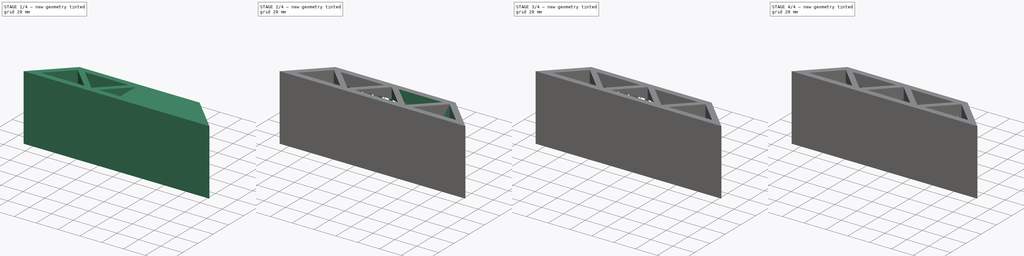
[diagram: build sequence overview — one tinted view per stage of 4, left to right]
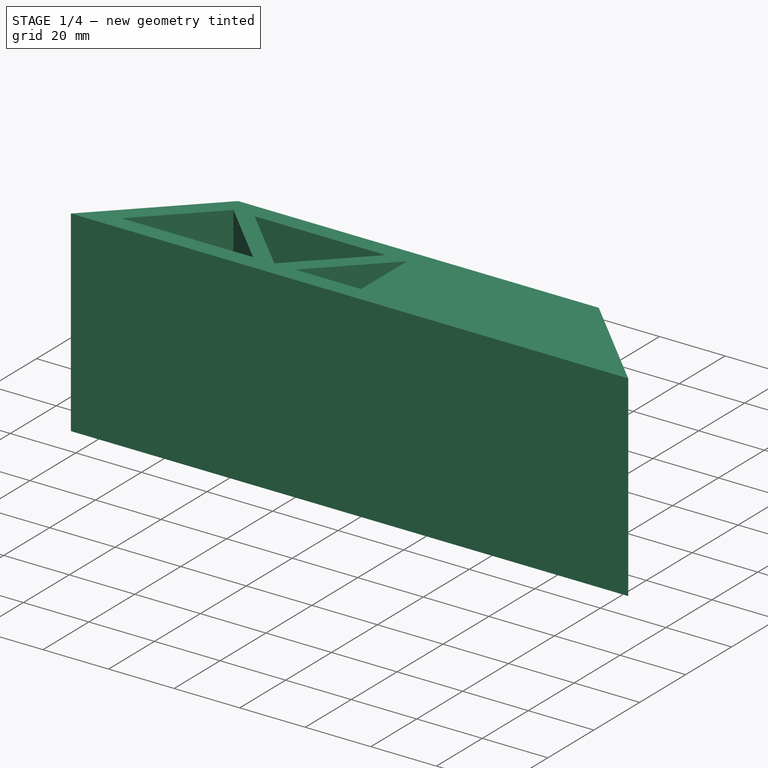
[diagram: stage 1 of 4 — iso view after this stage's code; geometry added in this stage tinted green]
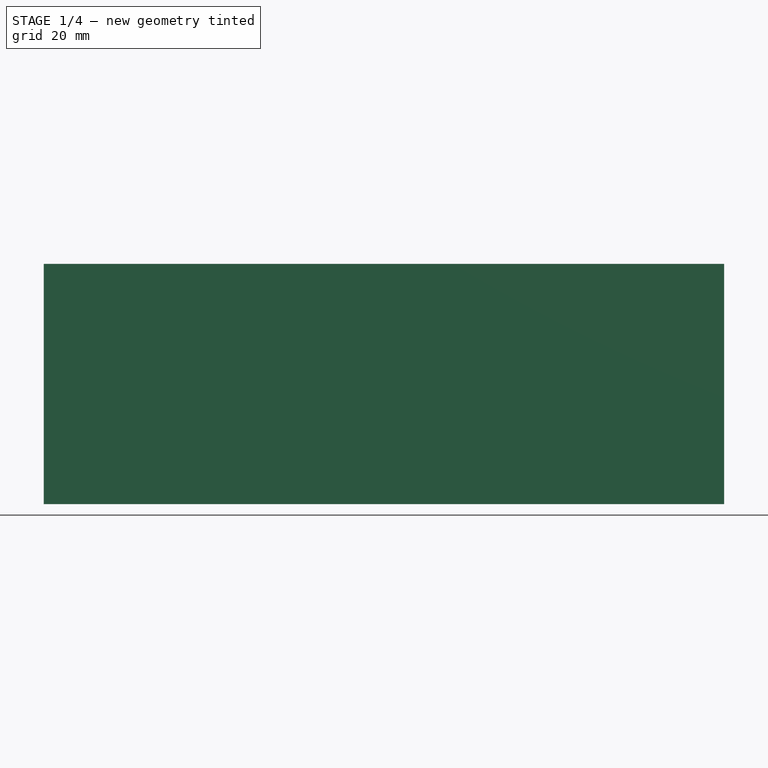
[diagram: stage 1 of 4 — front view after this stage's code; geometry added in this stage tinted green]
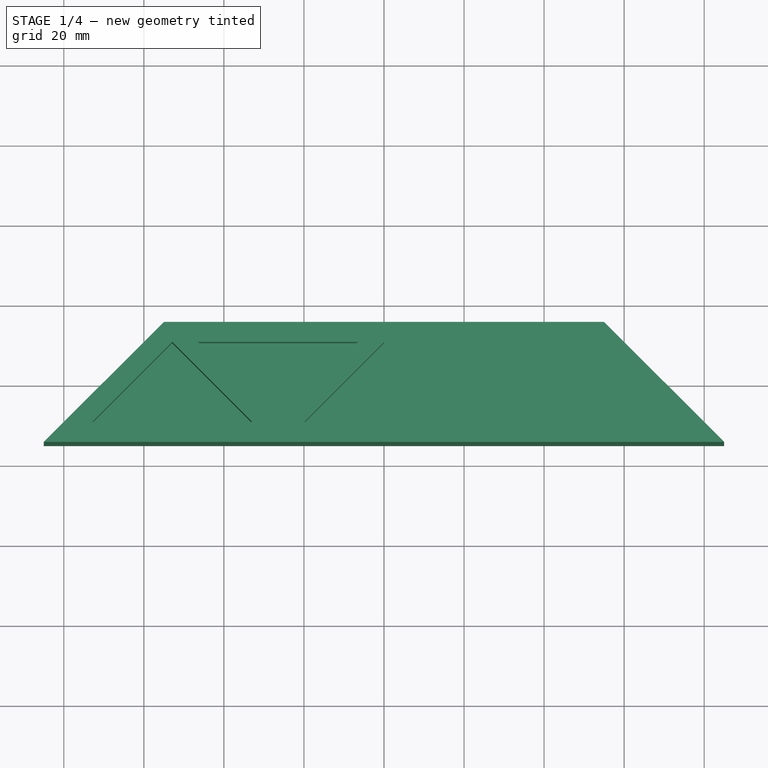
[diagram: stage 1 of 4 — top view after this stage's code; geometry added in this stage tinted green]
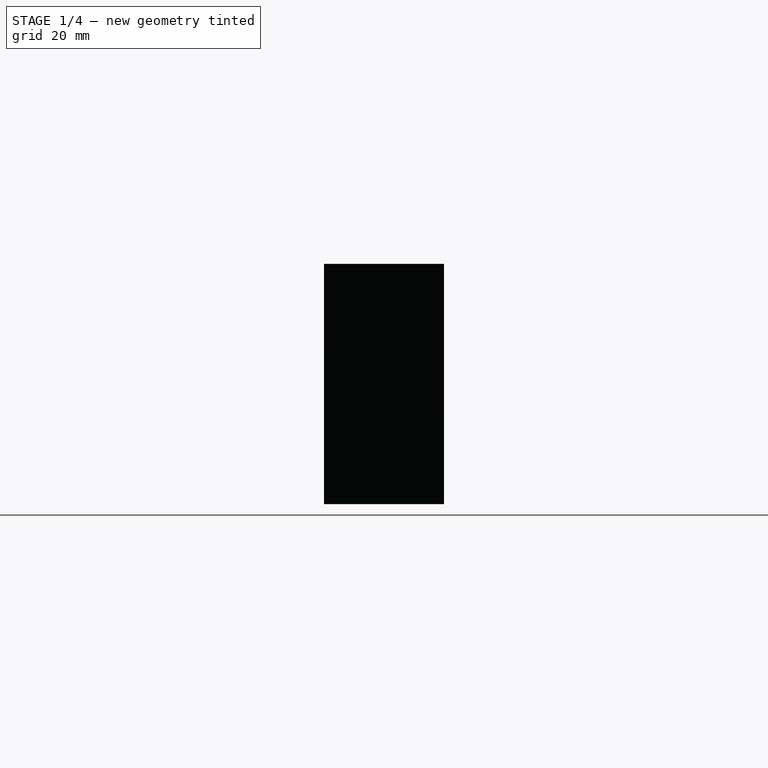
[diagram: stage 1 of 4 — right view after this stage's code; geometry added in this stage tinted green]
FCSTD DOCUMENT  (FreeCAD 0.17R13519 (Git))
Label: XiePo-jwei-1.0
License: All rights reserved
LicenseURL: http://en.wikipedia.org/wiki/All_rights_reserved
objects: Sketcher::SketchObject×6, PartDesign::Pocket×4, PartDesign::LinearPattern×3, PartDesign::Pad×2, PartDesign::Body×2, PartDesign::Mirrored×1, Part::Cut×1
note: 25 computed .brp shape members not serialized (recipe doc carries the construction recipe); baked Part::Feature solids carry a one-line shape summary decoded from their .brp

FEATURE [Sketcher::SketchObject] Sketch
  sketch-geometry (4):
    g0: LineSegment StartX=-55 StartY=15 StartZ=0 EndX=55 EndY=15 EndZ=0
    g1: LineSegment StartX=55 StartY=15 StartZ=0 EndX=85 EndY=-15 EndZ=0
    g2: LineSegment StartX=85 StartY=-15 StartZ=0 EndX=-85 EndY=-15 EndZ=0
    g3: LineSegment StartX=-85 StartY=-15 StartZ=0 EndX=-55 EndY=15 EndZ=0
  constraints (12):
    c: Horizontal(g0)
    c: Coincident(g0,g1)
    c: Coincident(g1,g2)
    c: Horizontal(g2)
    c: Coincident(g2,g3)
    c: Coincident(g3,g0)
    c: DistanceX(g0,g0) = 110
    c: DistanceX(g2,g2) = 170
    c: DistanceX(g-2,g0) = -55
    c: DistanceX(g-2,g2) = -85
    c: Angle(g2,g3) = 0.785398
    c: DistanceY(g-1,g0) = 15
FEATURE [PartDesign::Pad] Pad
  Length = 60
  Length2 = 100
  Profile = -> Sketch
  Type = 0
FEATURE [Sketcher::SketchObject] Sketch001
  ExternalGeometry = -> [Pad]
  MapMode = 5
  Placement = pos=(0,0,60) rot=(0,0,1;0rad)
  Support = -> [Pad]
  sketch-geometry (10):
    g0: LineSegment StartX=-72.9289 StartY=-10 StartZ=0 EndX=-52.9289 EndY=10 EndZ=0
    g1: LineSegment StartX=52.9289 StartY=10 StartZ=0 EndX=72.9289 EndY=-10 EndZ=0
    g2: LineSegment StartX=-52.9289 StartY=10 StartZ=0 EndX=-32.9289 EndY=-10 EndZ=0
    g3: LineSegment StartX=-46.466 StartY=10 StartZ=0 EndX=-26.466 EndY=-10 EndZ=0
    g4: LineSegment StartX=-26.466 StartY=-10 StartZ=0 EndX=-6.46598 EndY=10 EndZ=0
    g5: LineSegment StartX=-20 StartY=-10 StartZ=0 EndX=0 EndY=10 EndZ=0
    g6: LineSegment StartX=-72.9289 StartY=-10 StartZ=0 EndX=-32.9289 EndY=-10 EndZ=0
    g7: LineSegment StartX=-46.466 StartY=10 StartZ=0 EndX=-6.46598 EndY=10 EndZ=0
    g8: LineSegment StartX=-20 StartY=-10 StartZ=0 EndX=0 EndY=-10 EndZ=0
    g9: LineSegment StartX=0 StartY=-10 StartZ=0 EndX=0 EndY=10 EndZ=0
  constraints (29):
    c: Distance(g0,g-4) = 5
    c: Distance(g1,g-6) = 5
    c: Distance(g0,g-5) = 5
    c: Parallel(g0,g-4)
    c: Parallel(g1,g-6)
    c: Distance(g0,g-3) = 5
    c: Coincident(g4,g3)
    c: Parallel(g2,g3)
    c: Parallel(g4,g5)
    c: PointOnObject(g5,g-2)
    c: Coincident(g2,g0)
    c: Perpendicular(g2,g0)
    c: Perpendicular(g4,g3)
    c: Distance(g3,g2) = 4.57
    c: Coincident(g6,g0)
    c: Coincident(g6,g2)
    c: Horizontal(g6)
    c: Coincident(g7,g3)
    c: Coincident(g7,g4)
    c: Horizontal(g7)
    c: Coincident(g5,g8)
    c: PointOnObject(g8,g-2)
    c: Horizontal(g8)
    c: Coincident(g8,g9)
    c: Coincident(g9,g5)
    c: Horizontal(g3,g2)
    c: Horizontal(g5,g3)
    c: Horizontal(g0,g3)
    c: Horizontal(g3,g5)
FEATURE [PartDesign::Pocket] Pocket
  BaseFeature = -> Pad
  Length = 5
  Length2 = 100
  Profile = -> Sketch001
  Type = 1
FEATURE [PartDesign::Body] Body
  Group = -> [Sketch,Pad,Sketch001,Pocket,Mirrored,Sketch002,Pocket001,LinearPattern,Sketch003,Pocket002,LinearPattern001,Sketch004,Pocket003,LinearPattern002]
  Origin = -> Origin
  Tip = -> LinearPattern002
FEATURE [Sketcher::SketchObject] Sketch005
  MapMode = 5
  Support = -> [XY_Plane001]
  sketch-geometry (4):
    g0: LineSegment StartX=-52.93 StartY=10 StartZ=0 EndX=52.93 EndY=10 EndZ=0
    g1: LineSegment StartX=52.93 StartY=10 StartZ=0 EndX=72.93 EndY=-10 EndZ=0
    g2: LineSegment StartX=72.93 StartY=-10 StartZ=0 EndX=-72.93 EndY=-10 EndZ=0
    g3: LineSegment StartX=-72.93 StartY=-10 StartZ=0 EndX=-52.93 EndY=10 EndZ=0
  constraints (12):
    c: Horizontal(g0)
    c: Coincident(g0,g1)
    c: Coincident(g1,g2)
    c: Horizontal(g2)
    c: Coincident(g2,g3)
    c: Coincident(g3,g0)
    c: DistanceX(g0,g0) = 105.86
    c: DistanceX(g2,g2) = 145.86
    c: Angle(g2,g3) = 0.785398
    c: DistanceX(g-2,g0) = -52.93
    c: DistanceX(g-2,g2) = -72.93
    c: Distance(g-1,g2) = 10
FEATURE [PartDesign::Pad] Pad001
  Length = 40
  Length2 = 100
  Profile = -> Sketch005
  Type = 0
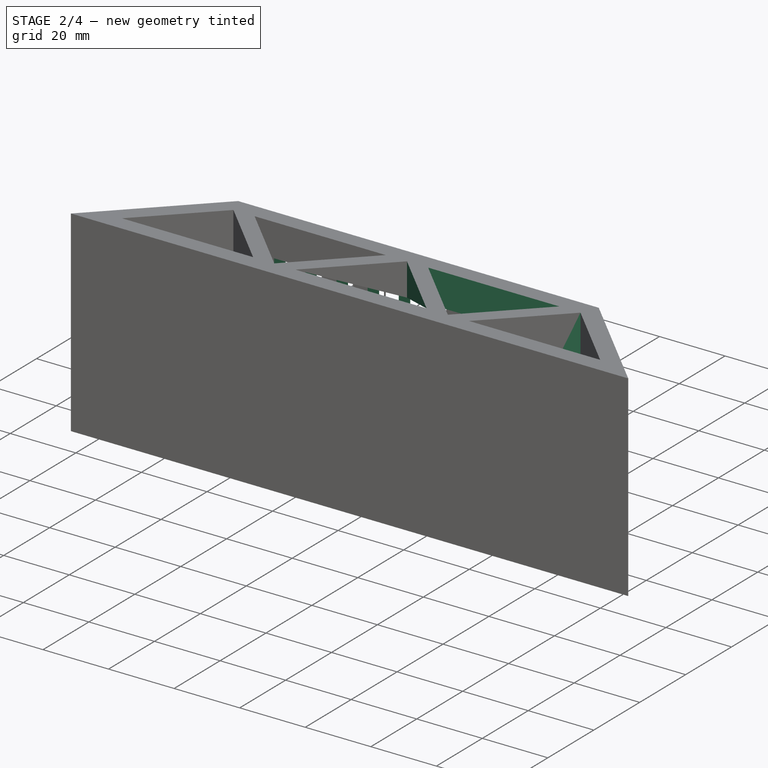
[diagram: stage 2 of 4 — iso view after this stage's code; geometry added in this stage tinted green]
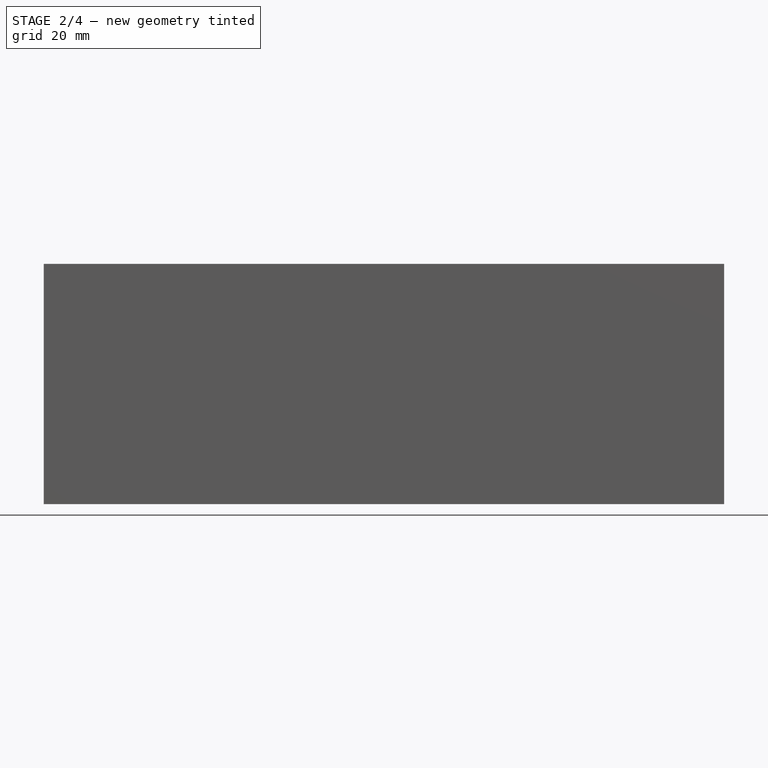
[diagram: stage 2 of 4 — front view after this stage's code; geometry added in this stage tinted green]
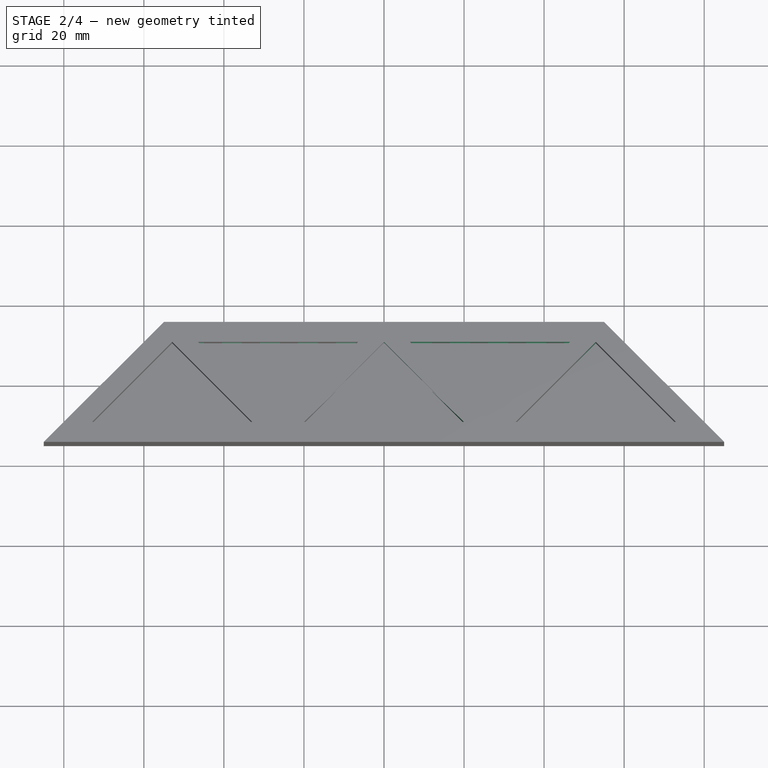
[diagram: stage 2 of 4 — top view after this stage's code; geometry added in this stage tinted green]
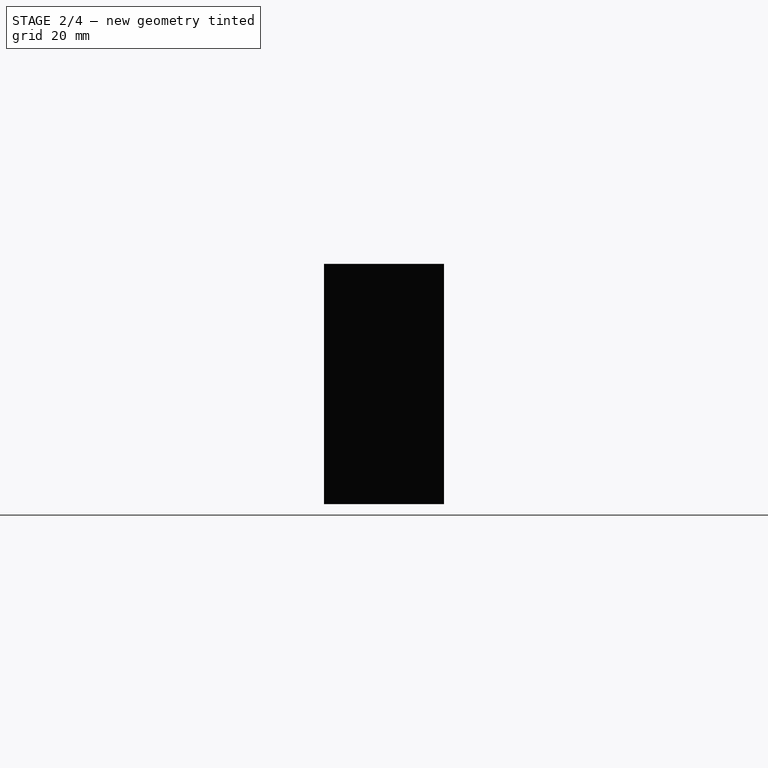
[diagram: stage 2 of 4 — right view after this stage's code; geometry added in this stage tinted green]
FEATURE [PartDesign::Mirrored] Mirrored
  BaseFeature = -> Pocket
  MirrorPlane = -> Sketch001 [V_Axis]
  Originals = -> [Pocket]
FEATURE [Sketcher::SketchObject] Sketch002
  ExternalGeometry = -> [Mirrored]
  MapMode = 5
  Placement = pos=(0,15,0) rot=(0,0.707107,0.707107;3.14159rad)
  Support = -> [Mirrored]
  sketch-geometry (4):
    g0: LineSegment StartX=-50 StartY=50 StartZ=0 EndX=-45 EndY=50 EndZ=0
    g1: LineSegment StartX=-45 StartY=50 StartZ=0 EndX=-45 EndY=10 EndZ=0
    g2: LineSegment StartX=-45 StartY=10 StartZ=0 EndX=-50 EndY=10 EndZ=0
    g3: LineSegment StartX=-50 StartY=10 StartZ=0 EndX=-50 EndY=50 EndZ=0
  constraints (12):
    c: Coincident(g0,g1)
    c: Coincident(g1,g2)
    c: Coincident(g2,g3)
    c: Coincident(g3,g0)
    c: Horizontal(g0)
    c: Horizontal(g2)
    c: Vertical(g1)
    c: Vertical(g3)
    c: DistanceY(g-1,g2) = 10
    c: Distance(g0,g-3) = 10
    c: Distance(g0,g-4) = 5
    c: DistanceX(g0,g0) = 5
FEATURE [PartDesign::Pocket] Pocket001
  BaseFeature = -> Mirrored
  Length = 5
  Length2 = 100
  Profile = -> Sketch002
  Type = 0
FEATURE [PartDesign::LinearPattern] LinearPattern
  BaseFeature = -> Pocket001
  Direction = -> Sketch002 [H_Axis]
  Length = 95
  Occurrences = 11
  Originals = -> [Pocket001]
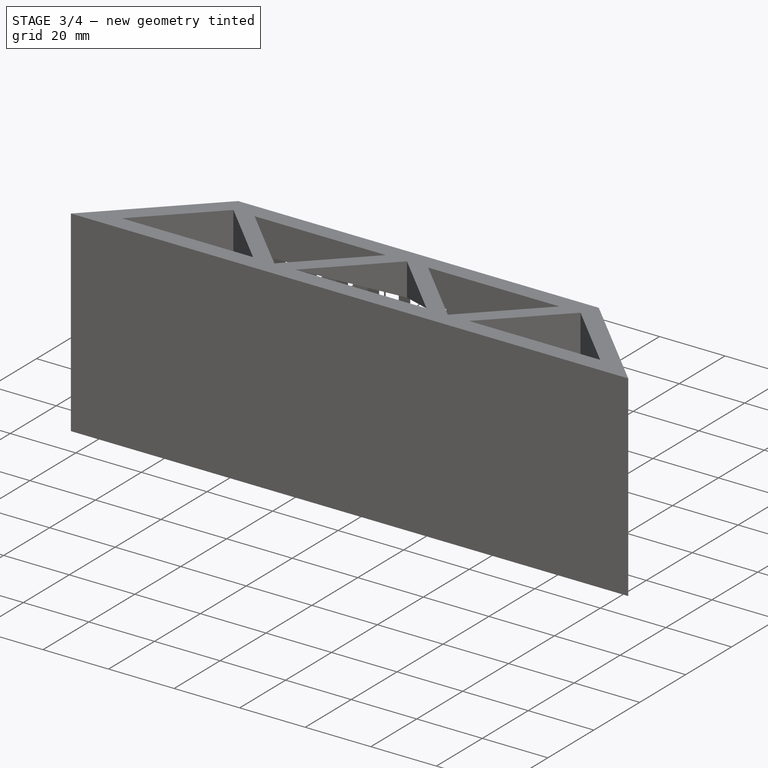
[diagram: stage 3 of 4 — iso view after this stage's code; geometry added in this stage tinted green]
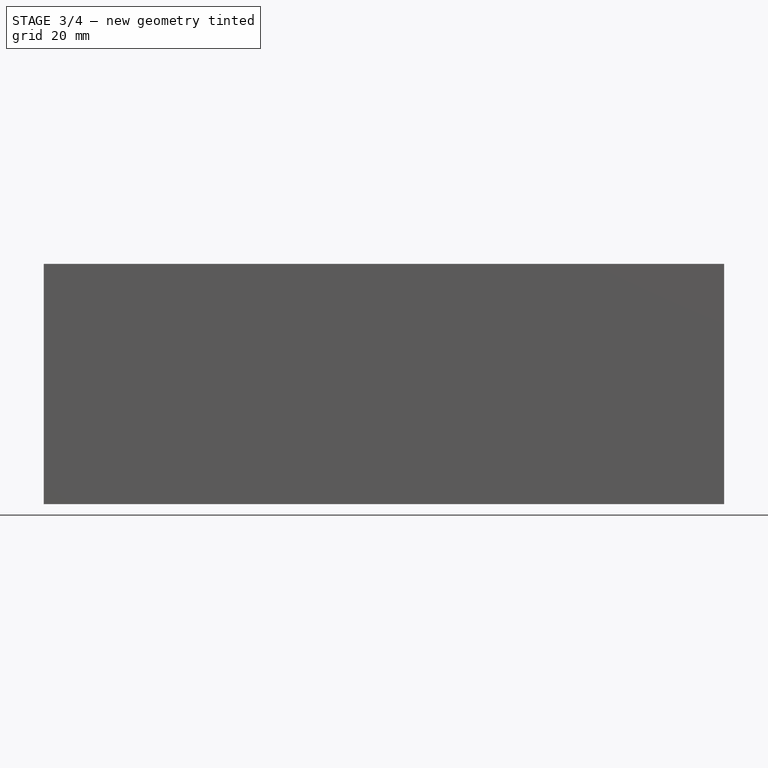
[diagram: stage 3 of 4 — front view after this stage's code; geometry added in this stage tinted green]
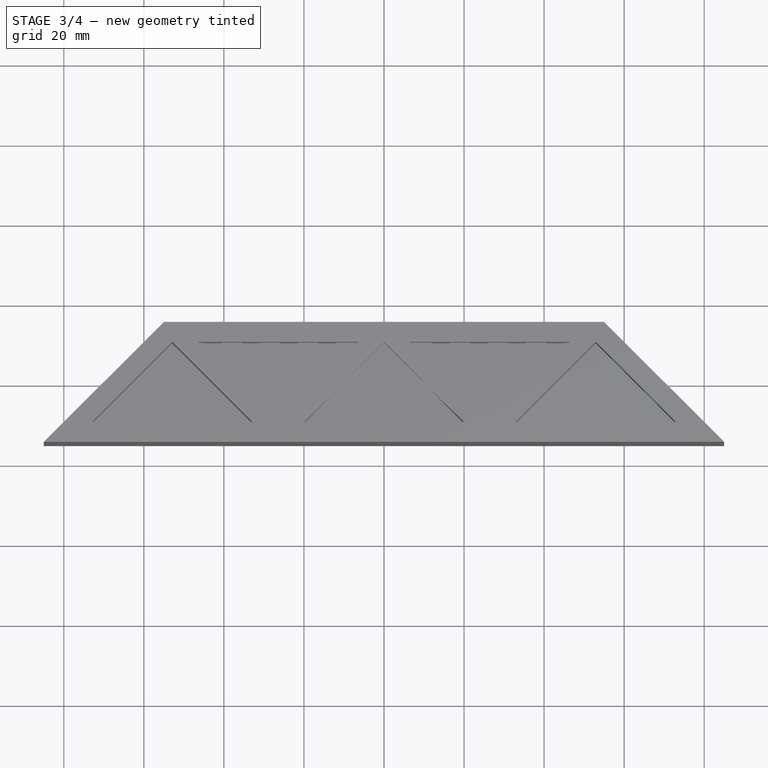
[diagram: stage 3 of 4 — top view after this stage's code; geometry added in this stage tinted green]
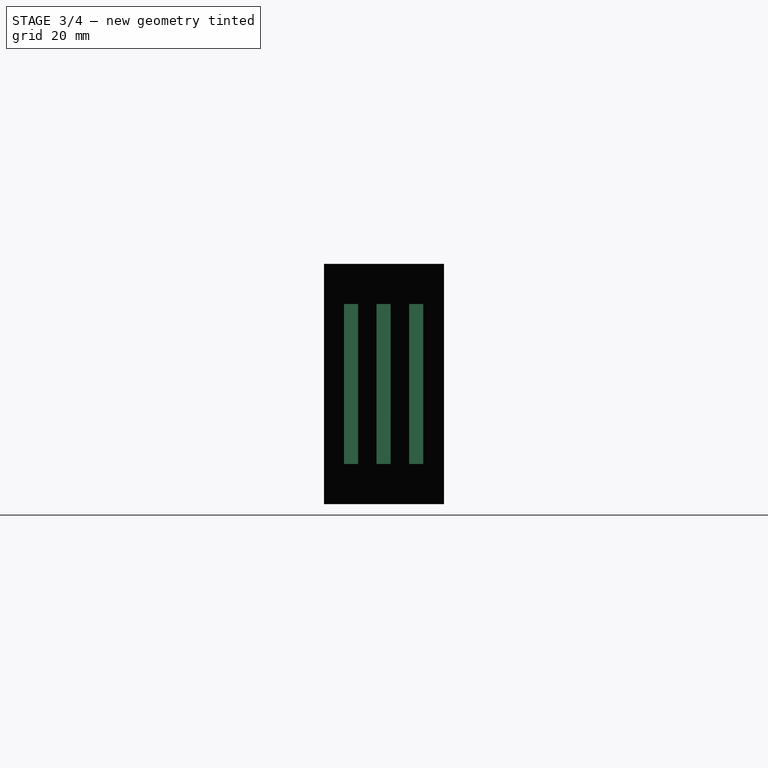
[diagram: stage 3 of 4 — right view after this stage's code; geometry added in this stage tinted green]
FEATURE [Sketcher::SketchObject] Sketch003
  ExternalGeometry = -> [LinearPattern]
  MapMode = 5
  Placement = pos=(35,35,0) rot=(0.281085,0.678598,0.678598;2.59356rad)
  Support = -> [LinearPattern]
  sketch-geometry (4):
    g0: LineSegment StartX=-63.6407 StartY=50 StartZ=0 EndX=-58.6407 EndY=50 EndZ=0
    g1: LineSegment StartX=-58.6407 StartY=50 StartZ=0 EndX=-58.6407 EndY=10 EndZ=0
    g2: LineSegment StartX=-58.6407 StartY=10 StartZ=0 EndX=-63.6407 EndY=10 EndZ=0
    g3: LineSegment StartX=-63.6407 StartY=10 StartZ=0 EndX=-63.6407 EndY=50 EndZ=0
  constraints (12):
    c: Coincident(g0,g1)
    c: Coincident(g1,g2)
    c: Coincident(g2,g3)
    c: Coincident(g3,g0)
    c: Horizontal(g0)
    c: Horizontal(g2)
    c: Vertical(g1)
    c: Vertical(g3)
    c: Distance(g0,g-4) = 7.07
    c: DistanceY(g-1,g2) = 10
    c: Distance(g0,g-3) = 10
    c: DistanceX(g0,g0) = 5
FEATURE [PartDesign::Pocket] Pocket002
  BaseFeature = -> LinearPattern
  Length = 5
  Length2 = 100
  Profile = -> Sketch003
  Type = 0
FEATURE [PartDesign::LinearPattern] LinearPattern001
  BaseFeature = -> Pocket002
  Direction = -> Sketch003 [H_Axis]
  Length = 23
  Occurrences = 3
  Originals = -> [Pocket002]
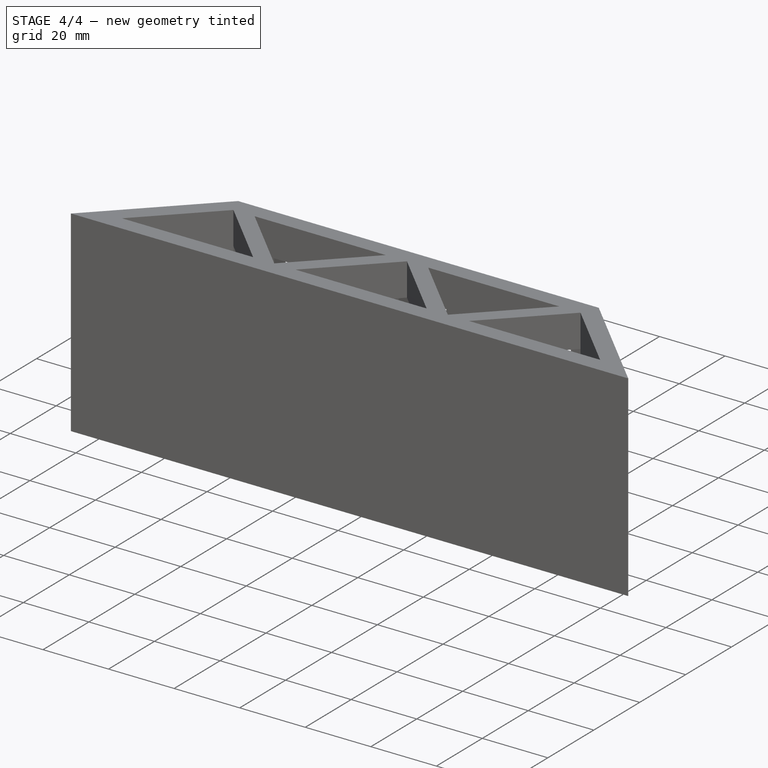
[diagram: stage 4 of 4 — iso view after this stage's code; geometry added in this stage tinted green]
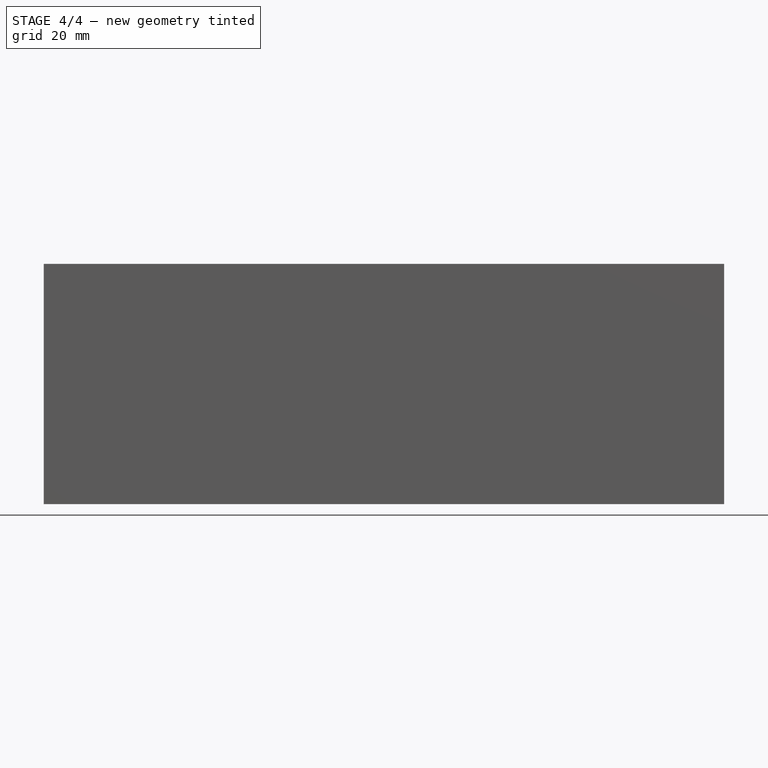
[diagram: stage 4 of 4 — front view after this stage's code; geometry added in this stage tinted green]
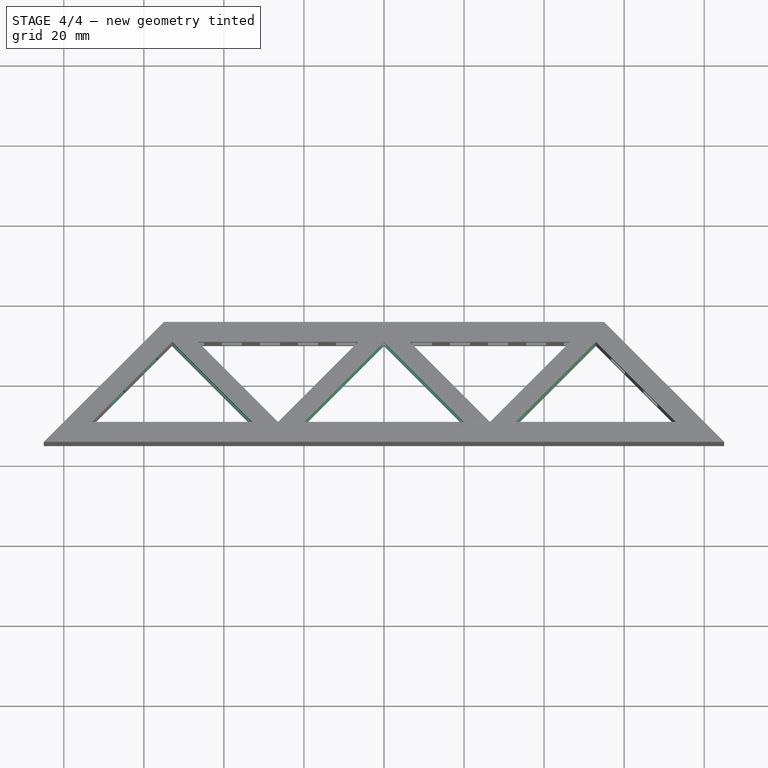
[diagram: stage 4 of 4 — top view after this stage's code; geometry added in this stage tinted green]
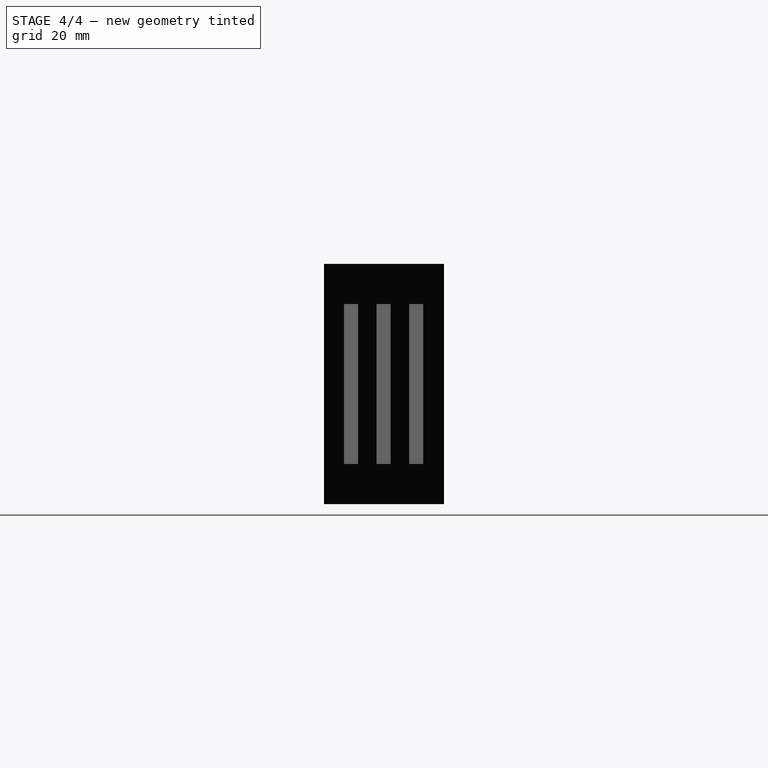
[diagram: stage 4 of 4 — right view after this stage's code; geometry added in this stage tinted green]
FEATURE [Sketcher::SketchObject] Sketch004
  ExternalGeometry = -> [LinearPattern001]
  MapMode = 5
  Placement = pos=(-35,35,0) rot=(-0.281085,0.678598,0.678598;3.68962rad)
  Support = -> [LinearPattern001]
  sketch-geometry (4):
    g0: LineSegment StartX=58.6407 StartY=50 StartZ=0 EndX=63.6407 EndY=50 EndZ=0
    g1: LineSegment StartX=63.6407 StartY=50 StartZ=0 EndX=63.6407 EndY=10 EndZ=0
    g2: LineSegment StartX=63.6407 StartY=10 StartZ=0 EndX=58.6407 EndY=10 EndZ=0
    g3: LineSegment StartX=58.6407 StartY=10 StartZ=0 EndX=58.6407 EndY=50 EndZ=0
  constraints (12):
    c: Coincident(g0,g1)
    c: Coincident(g1,g2)
    c: Coincident(g2,g3)
    c: Coincident(g3,g0)
    c: Horizontal(g0)
    c: Horizontal(g2)
    c: Vertical(g1)
    c: Vertical(g3)
    c: DistanceX(g0,g0) = 5
    c: Distance(g0,g-3) = 10
    c: DistanceY(g-1,g1) = 10
    c: Distance(g1,g-4) = 7.07
FEATURE [PartDesign::Pocket] Pocket003
  BaseFeature = -> LinearPattern001
  Length = 5
  Length2 = 100
  Profile = -> Sketch004
  Type = 0
FEATURE [PartDesign::LinearPattern] LinearPattern002
  BaseFeature = -> Pocket003
  Direction = -> Sketch004 [H_Axis]
  Length = 23
  Occurrences = 3
  Originals = -> [Pocket003]
  Reversed = true
FEATURE [PartDesign::Body] Body001
  Group = -> [Sketch005,Pad001]
  Origin = -> Origin001
  Placement = pos=(0,0,10) rot=(0,0,1;0rad)
  Tip = -> Pad001
FEATURE [Part::Cut] Cut
  Base = -> Body
  Tool = -> Body001
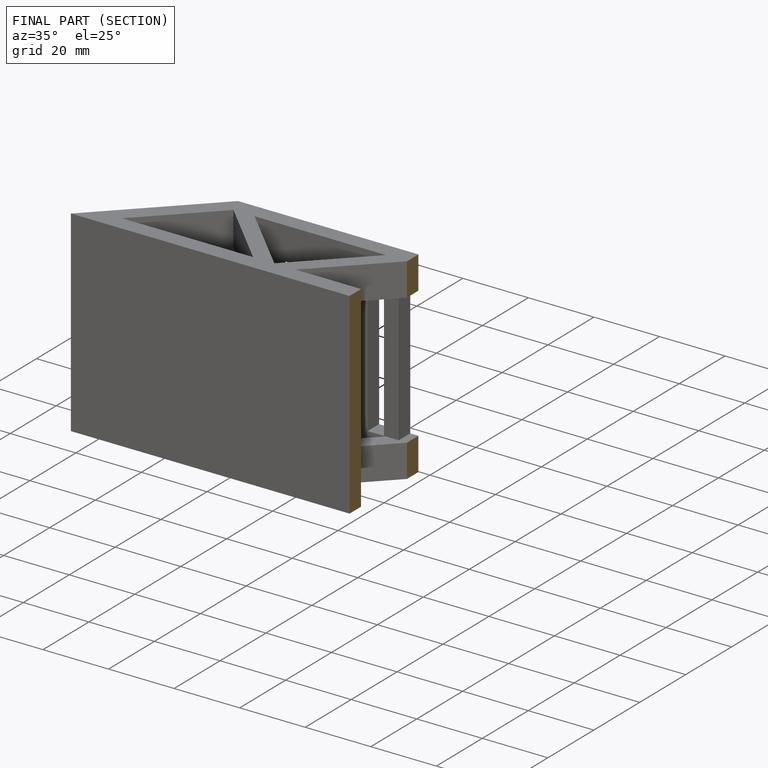
[diagram: finished part — half-section view (interior)]
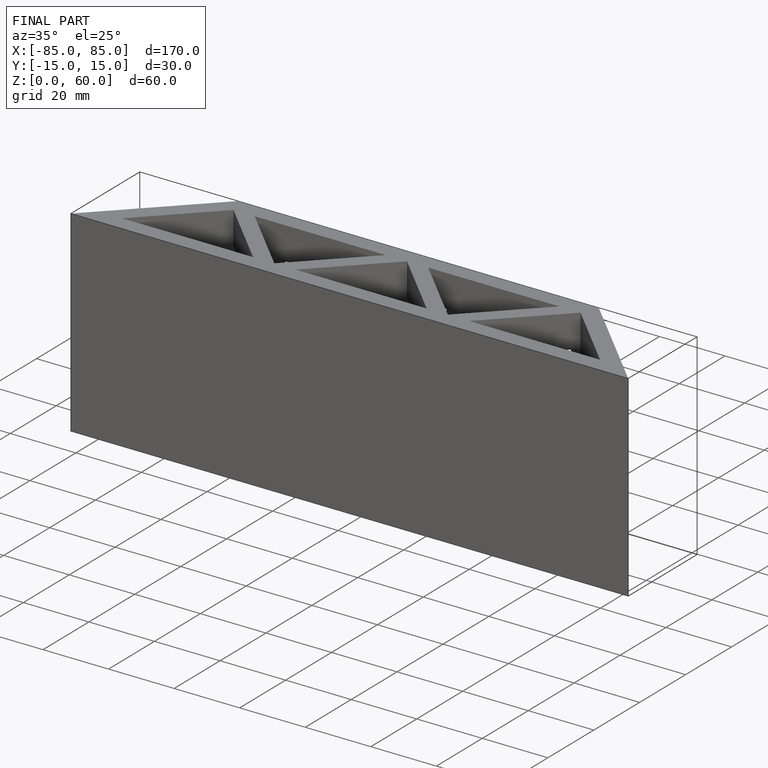
[diagram: finished part — iso view with bounding-box wireframe]
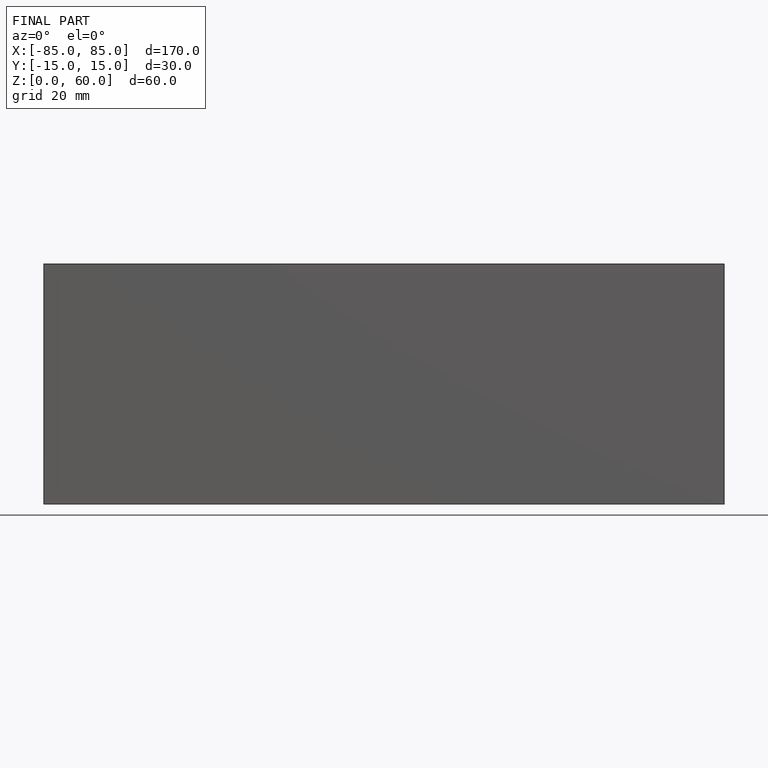
[diagram: finished part — front view with bounding-box wireframe]
